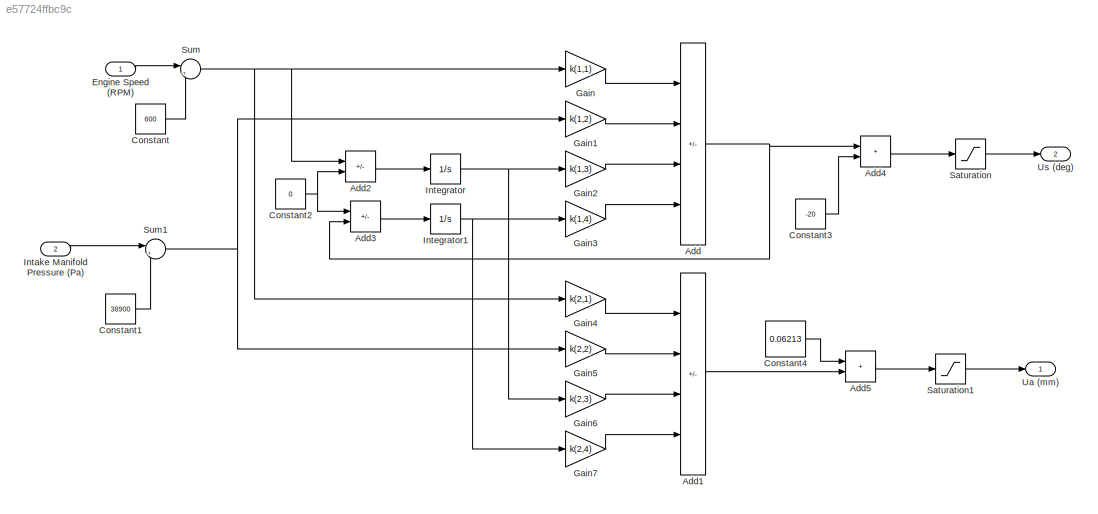
MODEL slx_e57724ffbc9c
KIND model
CONFIG AbsTol = auto
CONFIG EnableMultiTasking = on
CONFIG FixedStep = 0.01
CONFIG InitFcn = IdleSpeedSimParameters
CONFIG MaxStep = auto
CONFIG MinStep = auto
CONFIG RelTol = 1e-3
CONFIG SampleTimeConstraint = Unconstrained
CONFIG SolverName = FixedStepAuto
CONFIG StartTime = 0.0
CONFIG StopTime = 10.0
BLOCK [Sum] Add
  IconShape = rectangular
  Inputs = ----
  Ports = [4, 1]
BLOCK [Sum] Add1
  IconShape = rectangular
  Inputs = ----
  Ports = [4, 1]
BLOCK [Sum] Add2
  IconShape = rectangular
  Inputs = -+
  Ports = [2, 1]
BLOCK [Sum] Add3
  IconShape = rectangular
  Inputs = +-
  Ports = [2, 1]
BLOCK [Sum] Add4
  IconShape = rectangular
  Ports = [2, 1]
BLOCK [Sum] Add5
  IconShape = rectangular
  Ports = [2, 1]
BLOCK [Constant] Constant
  Value = 600
BLOCK [Constant] Constant1
  Value = 38900
BLOCK [Constant] Constant2
  Value = 0
BLOCK [Constant] Constant3
  Value = -20
BLOCK [Constant] Constant4
  Value = 0.06213
BLOCK [Inport] Engine Speed (RPM)
BLOCK [Gain] Gain
  Gain = k(1,1)
BLOCK [Gain] Gain1
  Gain = k(1,2)
BLOCK [Gain] Gain2
  Gain = k(1,3)
BLOCK [Gain] Gain3
  Gain = k(1,4)
BLOCK [Gain] Gain4
  Gain = k(2,1)
BLOCK [Gain] Gain5
  Gain = k(2,2)
BLOCK [Gain] Gain6
  Gain = k(2,3)
BLOCK [Gain] Gain7
  Gain = k(2,4)
BLOCK [Inport] Intake Manifold Pressure (Pa)
  Port = 2
BLOCK [Integrator] Integrator
  Ports = [1, 1]
BLOCK [Integrator] Integrator1
  Ports = [1, 1]
BLOCK [Saturate] Saturation
  LowerLimit = -40
  UpperLimit = 0
BLOCK [Saturate] Saturation1
  LowerLimit = 0
  UpperLimit = 0.12
BLOCK [Sum] Sum
  Inputs = |+-
  Ports = [2, 1]
BLOCK [Sum] Sum1
  Inputs = |+-
  Ports = [2, 1]
BLOCK [Outport] Ua (mm)
  VectorParamsAs1DForOutWhenUnconnected = off
BLOCK [Outport] Us (deg)
  Port = 2
  VectorParamsAs1DForOutWhenUnconnected = off
LINE Add1:1 -> Add5:2
LINE Add2:1 -> Integrator:1
LINE Add3:1 -> Integrator1:1
LINE Add4:1 -> Saturation:1
LINE Add5:1 -> Saturation1:1
NET Add:1 -> Add3:2, Add4:1
LINE Constant1:1 -> Sum1:2
NET Constant2:1 -> Add2:2, Add3:1
LINE Constant3:1 -> Add4:2
LINE Constant4:1 -> Add5:1
LINE Constant:1 -> Sum:2
LINE Engine Speed (RPM):1 -> Sum:1
LINE Gain1:1 -> Add:2
LINE Gain2:1 -> Add:3
LINE Gain3:1 -> Add:4
LINE Gain4:1 -> Add1:1
LINE Gain5:1 -> Add1:2
LINE Gain6:1 -> Add1:3
LINE Gain7:1 -> Add1:4
LINE Gain:1 -> Add:1
LINE Intake Manifold Pressure (Pa):1 -> Sum1:1
NET Integrator1:1 -> Gain3:1, Gain7:1
NET Integrator:1 -> Gain2:1, Gain6:1
LINE Saturation1:1 -> Ua (mm):1
LINE Saturation:1 -> Us (deg):1
NET Sum1:1 -> Gain1:1, Gain5:1
NET Sum:1 -> Add2:1, Gain4:1, Gain:1
note: NET lines group one-source signal fan-out (src -> all destinations, sorted); 1:1 wires keep LINE
